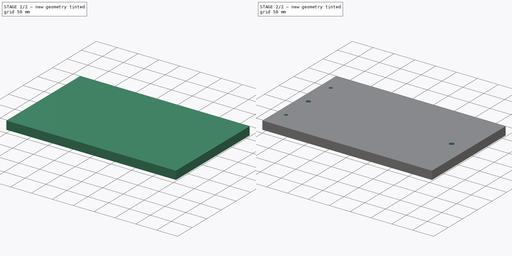
[diagram: build sequence overview — one tinted view per stage of 2, left to right]
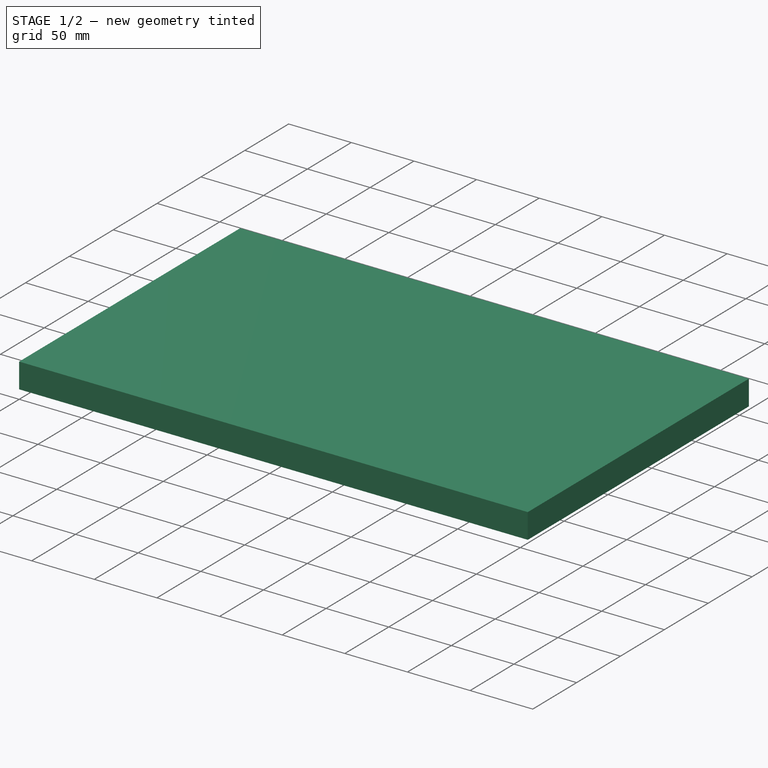
[diagram: stage 1 of 2 — iso view after this stage's code; geometry added in this stage tinted green]
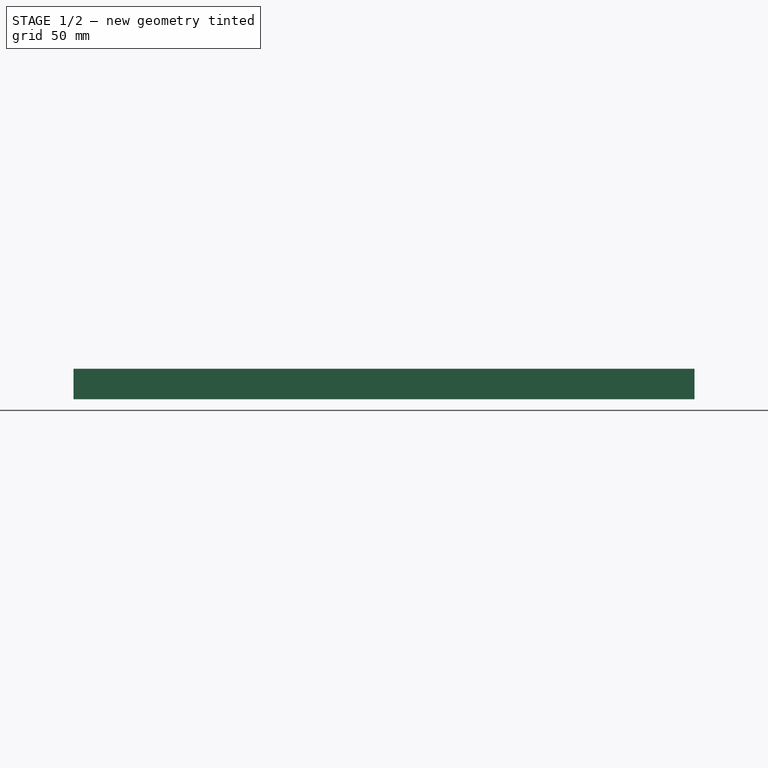
[diagram: stage 1 of 2 — front view after this stage's code; geometry added in this stage tinted green]
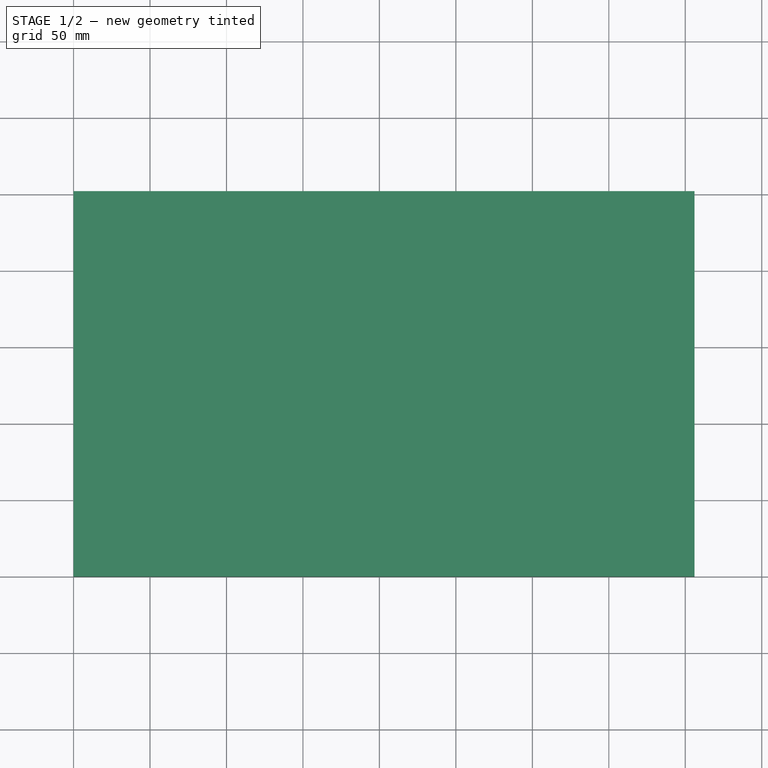
[diagram: stage 1 of 2 — top view after this stage's code; geometry added in this stage tinted green]
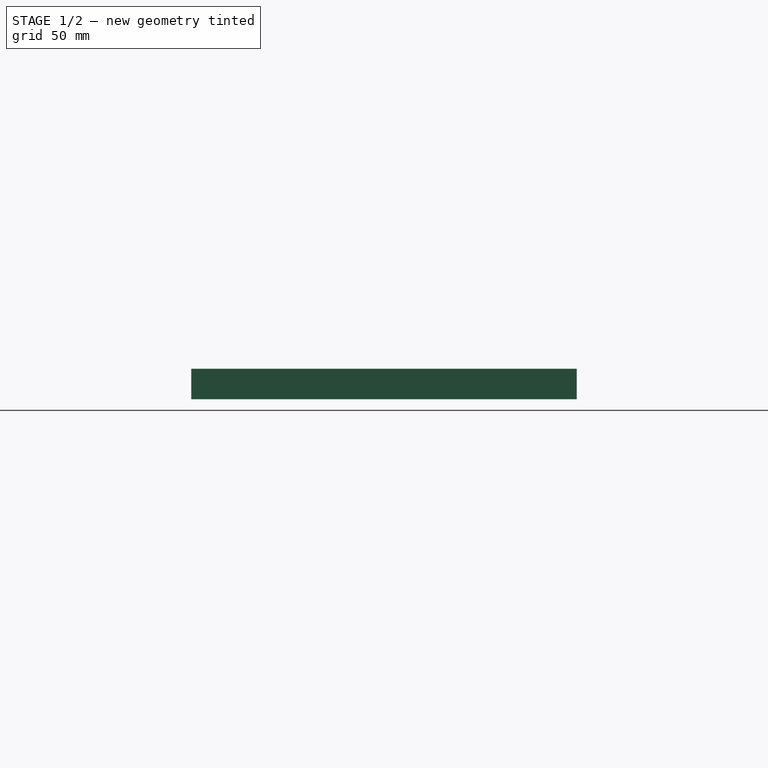
[diagram: stage 1 of 2 — right view after this stage's code; geometry added in this stage tinted green]
FCSTD DOCUMENT  (FreeCAD 0.18R16110 (Git))
Label: bed
License: All rights reserved
LicenseURL: http://en.wikipedia.org/wiki/All_rights_reserved
objects: Sketcher::SketchObject×3, PartDesign::Pocket×2, PartDesign::Pad×1, PartDesign::Body×1
note: 10 computed .brp shape members not serialized (recipe doc carries the construction recipe); baked Part::Feature solids carry a one-line shape summary decoded from their .brp

FEATURE [Sketcher::SketchObject] Sketch
  MapMode = 5
  Support = -> [XY_Plane]
  sketch-geometry (4):
    g0: LineSegment StartX=0 StartY=0 StartZ=0 EndX=406 EndY=0 EndZ=0
    g1: LineSegment StartX=406 StartY=0 StartZ=0 EndX=406 EndY=252 EndZ=0
    g2: LineSegment StartX=406 StartY=252 StartZ=0 EndX=0 EndY=252 EndZ=0
    g3: LineSegment StartX=0 StartY=252 StartZ=0 EndX=0 EndY=0 EndZ=0
  constraints (11):
    c: Coincident(g0,g1)
    c: Coincident(g1,g2)
    c: Coincident(g2,g3)
    c: Coincident(g3,g0)
    c: Horizontal(g0)
    c: Horizontal(g2)
    c: Vertical(g1)
    c: Vertical(g3)
    c: Coincident(g0,g-1)
    c: DistanceY(g3,g3) = 252
    c: DistanceX(g0,g0) = 406
FEATURE [PartDesign::Pad] Pad
  Length = 20
  Length2 = 100
  Profile = -> Sketch
  Type = 0
FEATURE [Sketcher::SketchObject] Sketch001
  MapMode = 5
  Placement = pos=(0,0,0) rot=(1,0,0;3.14159rad)
  Support = -> [Pad]
  sketch-geometry (4):
    g0: LineSegment StartX=3 StartY=-241 StartZ=0 EndX=388 EndY=-241 EndZ=0
    g1: LineSegment StartX=388 StartY=-241 StartZ=0 EndX=388 EndY=-8 EndZ=0
    g2: LineSegment StartX=388 StartY=-8 StartZ=0 EndX=3 EndY=-8 EndZ=0
    g3: LineSegment StartX=3 StartY=-8 StartZ=0 EndX=3 EndY=-241 EndZ=0
  constraints (12):
    c: Coincident(g0,g1)
    c: Coincident(g1,g2)
    c: Coincident(g2,g3)
    c: Coincident(g3,g0)
    c: Horizontal(g0)
    c: Horizontal(g2)
    c: Vertical(g1)
    c: Vertical(g3)
    c: DistanceX(g0,g0) = 385
    c: DistanceY(g1,g1) = 233
    c: DistanceY(g-1,g1) = -8
    c: DistanceX(g-2,g2) = 3
FEATURE [PartDesign::Pocket] Pocket
  BaseFeature = -> Pad
  Length = 15
  Length2 = 100
  Profile = -> Sketch001
  Type = 0
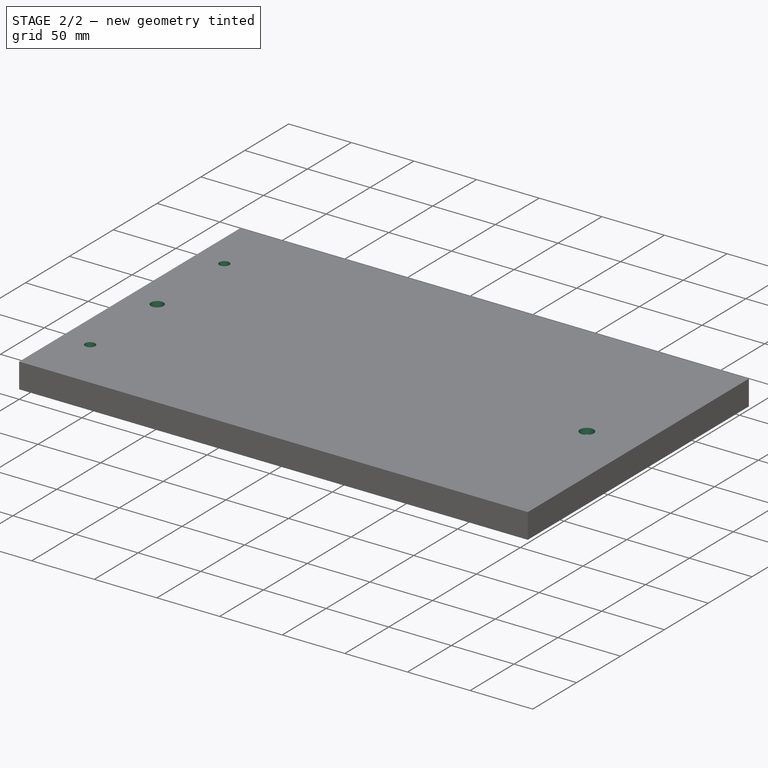
[diagram: stage 2 of 2 — iso view after this stage's code; geometry added in this stage tinted green]
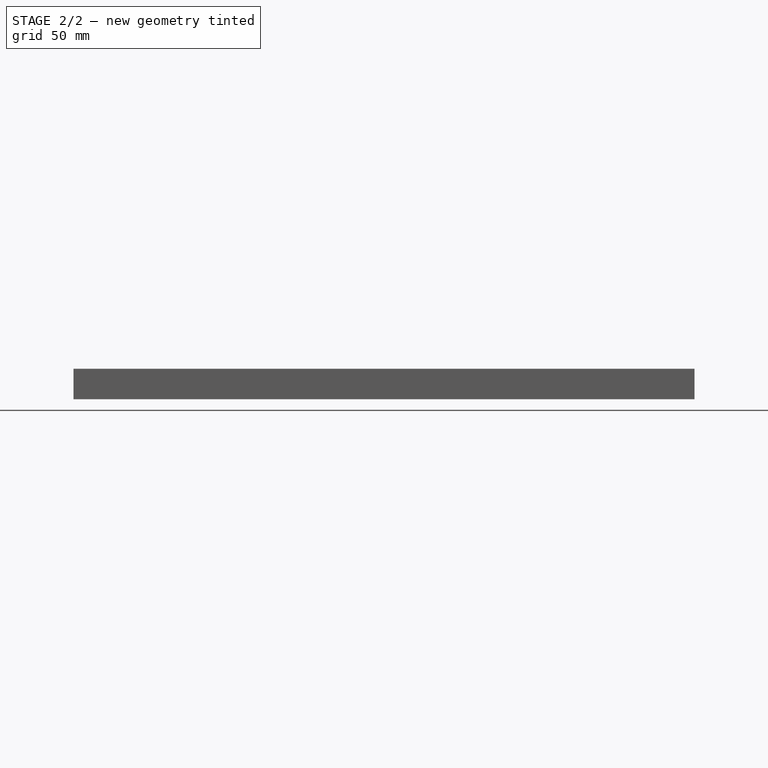
[diagram: stage 2 of 2 — front view after this stage's code; geometry added in this stage tinted green]
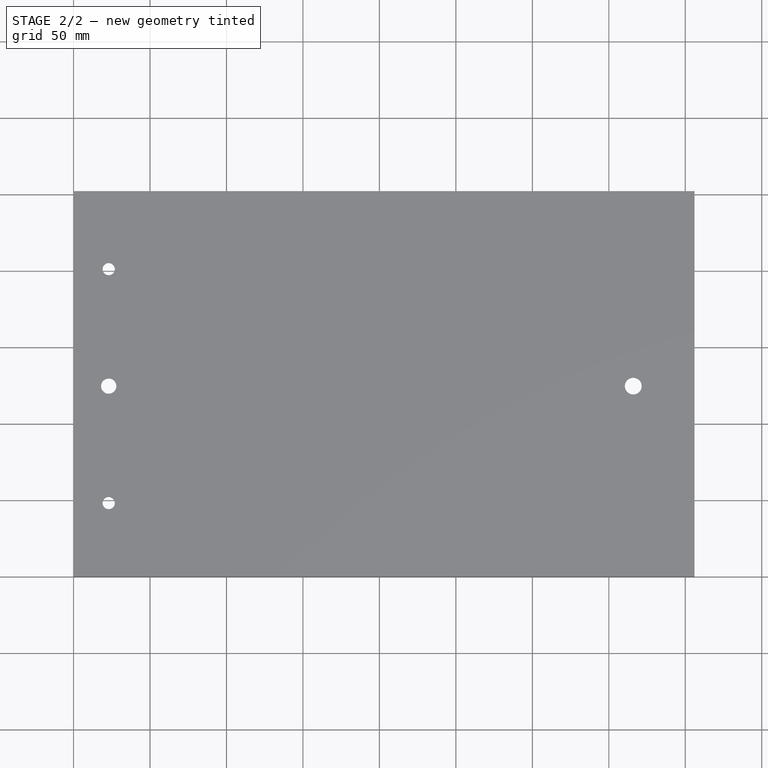
[diagram: stage 2 of 2 — top view after this stage's code; geometry added in this stage tinted green]
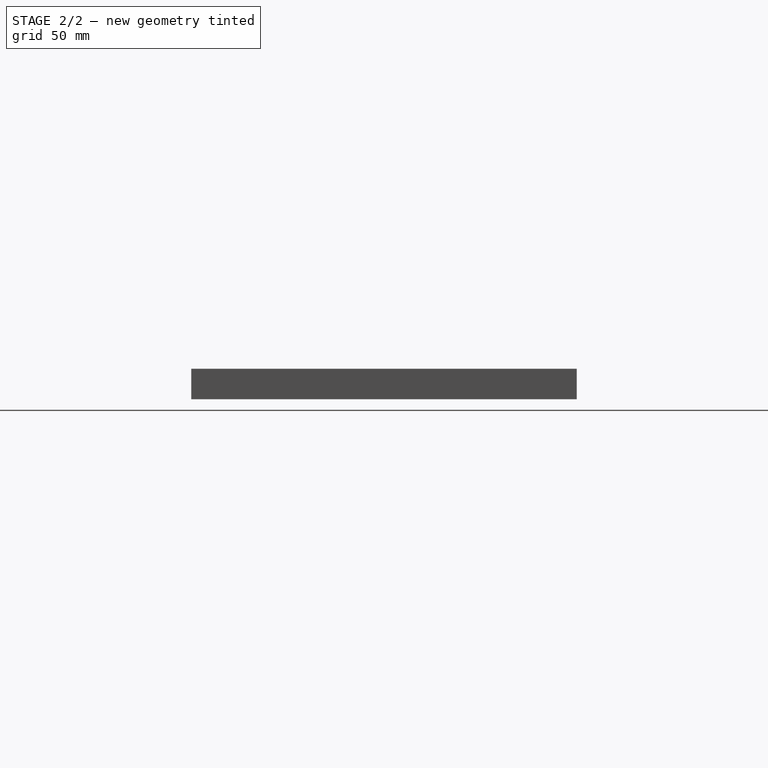
[diagram: stage 2 of 2 — right view after this stage's code; geometry added in this stage tinted green]
FEATURE [Sketcher::SketchObject] Sketch002
  ExternalGeometry = -> [Pocket]
  MapMode = 5
  Placement = pos=(0,0,15) rot=(1,0,0;3.14159rad)
  Support = -> [Pocket]
  sketch-geometry (6):
    g0: LineSegment [constr] StartX=23 StartY=-241 StartZ=0 EndX=23 EndY=-8 EndZ=0
    g1: Circle CenterX=23 CenterY=-201 CenterZ=0 NormalX=0 NormalY=0 NormalZ=1 AngleXU=0 Radius=4
    g2: Circle CenterX=23 CenterY=-124.5 CenterZ=0 NormalX=0 NormalY=0 NormalZ=1 AngleXU=0 Radius=5
    g3: Circle CenterX=23 CenterY=-48 CenterZ=0 NormalX=0 NormalY=0 NormalZ=1 AngleXU=0 Radius=4
    g4: LineSegment [constr] StartX=366 StartY=-241 StartZ=0 EndX=366 EndY=-8 EndZ=0
    g5: Circle CenterX=366 CenterY=-124.5 CenterZ=0 NormalX=0 NormalY=0 NormalZ=1 AngleXU=0 Radius=5.5
  constraints (20):
    c: Parallel(g0,g-3)
    c: PointOnObject(g0,g-4)
    c: PointOnObject(g0,g-5)
    c: Distance(g-5,g0) = 20
    c: Diameter(g1) = 8
    c: Diameter(g3) = 8
    c: Diameter(g2) = 10
    c: Distance(g-3) = 233
    c: PointOnObject(g1,g0)
    c: Distance(g1,g-5) = 40
    c: PointOnObject(g2,g0)
    c: Distance(g2,g-5) = 116.5
    c: Symmetric(g1,g3,g2)
    c: PointOnObject(g4,g-5)
    c: Perpendicular(g-5,g4)
    c: Distance(g4,g-6) = 22
    c: PointOnObject(g4,g-4)
    c: PointOnObject(g5,g4)
    c: Distance(g5,g-5) = 116.5
    c: Diameter(g5) = 11
FEATURE [PartDesign::Pocket] Pocket001
  BaseFeature = -> Pocket
  Length = 5
  Length2 = 100
  Profile = -> Sketch002
  Type = 1
FEATURE [PartDesign::Body] Body
  Group = -> [Sketch,Pad,Sketch001,Pocket,Sketch002,Pocket001]
  Origin = -> Origin
  Tip = -> Pocket001
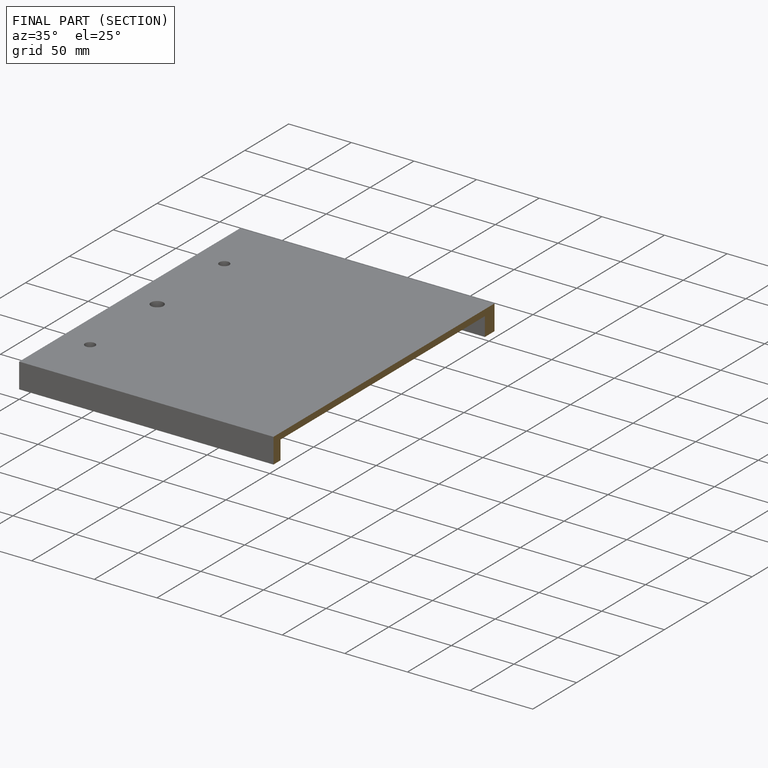
[diagram: finished part — half-section view (interior)]
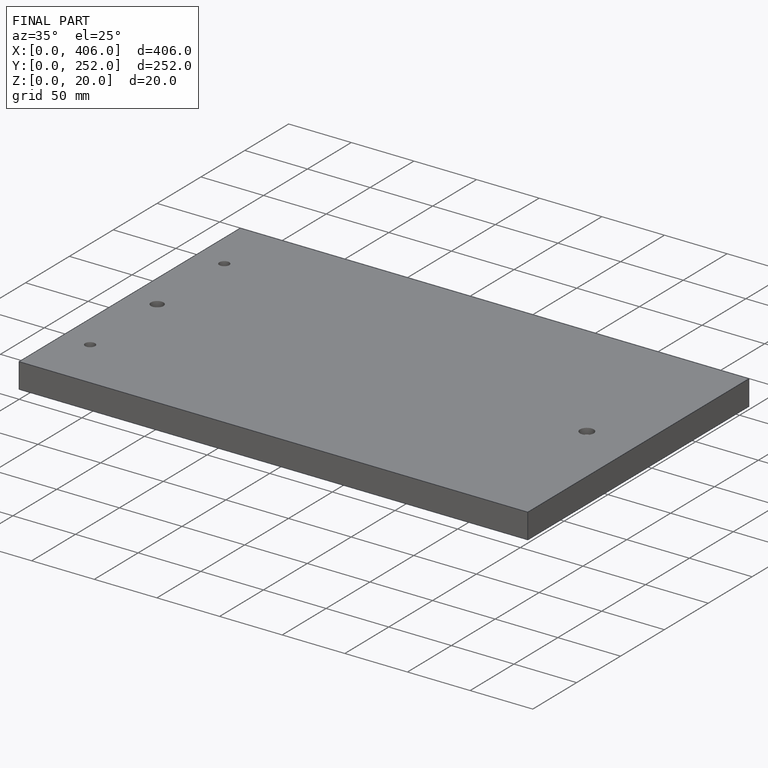
[diagram: finished part — iso view with bounding-box wireframe]
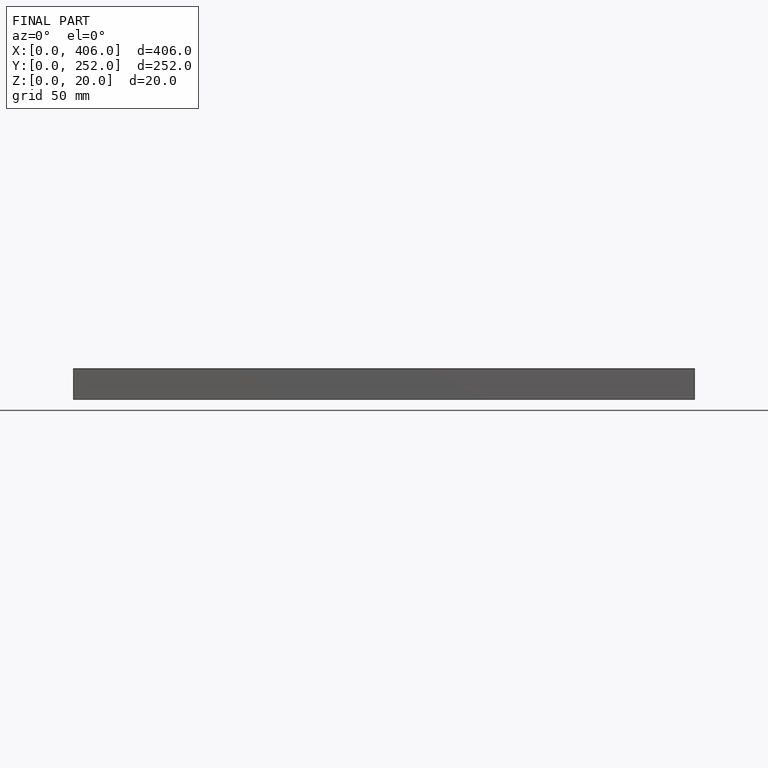
[diagram: finished part — front view with bounding-box wireframe]
